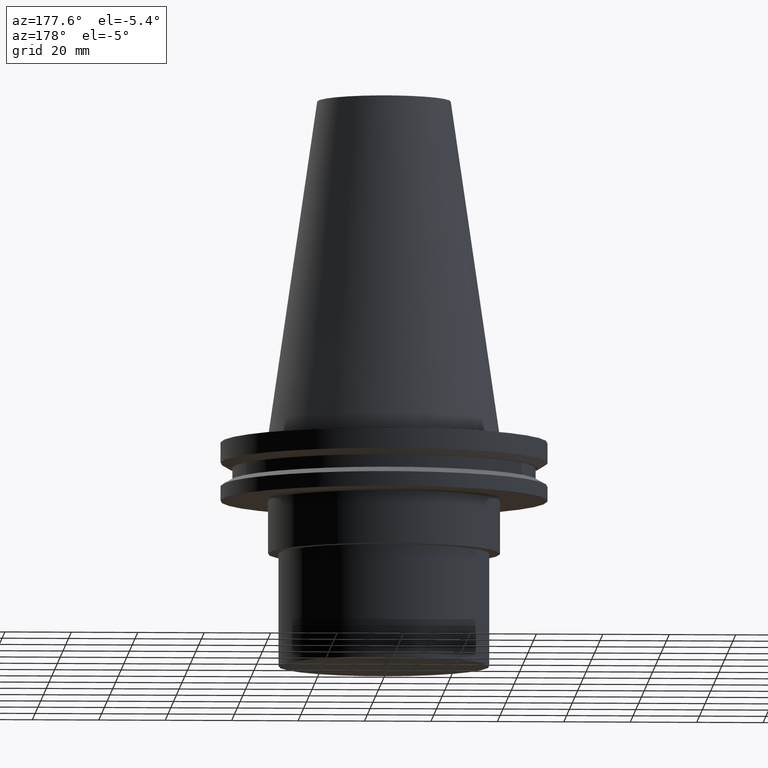
[diagram: clean part render]
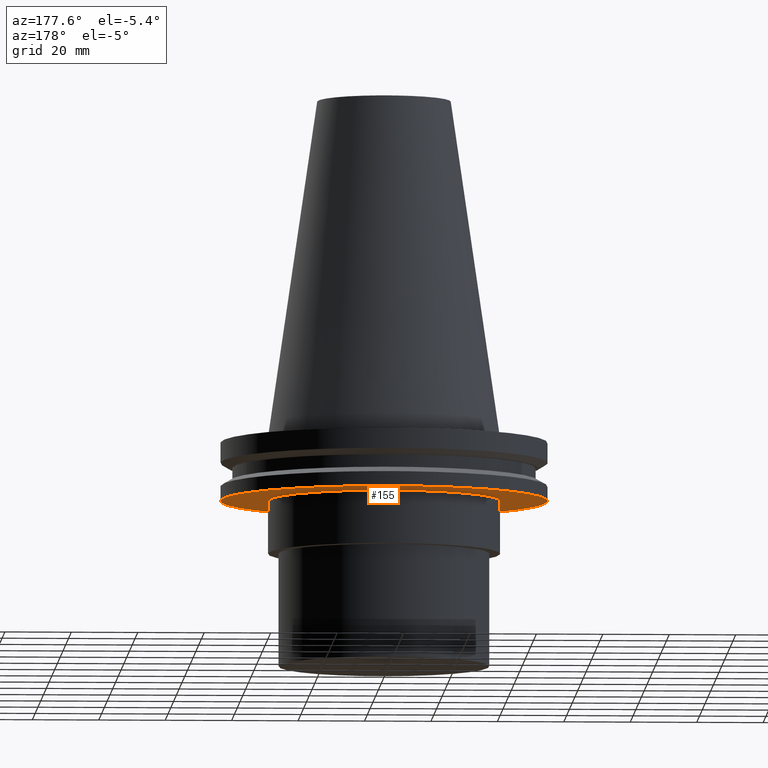
[diagram: same view with one face highlighted and labeled with its STEP entity id]
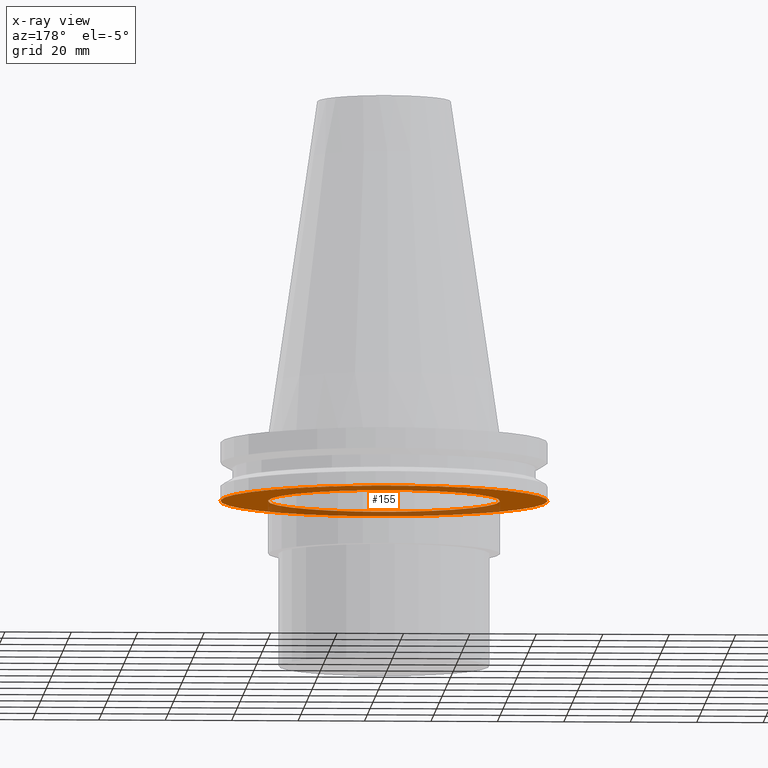
[diagram: x-ray of the same camera — body ghosted, the highlighted face saturated]
A machine part, auxiliary view. The second image highlights one B-rep face of the part: STEP entity #155.
The next image is the same camera in x-ray: the body ghosted, the highlighted face saturated — about 31% of this face is hidden behind the body in this view.
In plain terms, the highlighted planar face has unit normal (0, -0, 1).
Its self-contained STEP definition (entity closure, byte-faithful):
#2 = AXIS2_PLACEMENT_3D ( 'NONE', #6, #103, #231 ) ;
#6 = CARTESIAN_POINT ( 'NONE',  ( 0.000000000000000000, 0.000000000000000000, -19.04999999999999716 ) ) ;
#31 = DIRECTION ( 'NONE',  ( 0.000000000000000000, -0.000000000000000000, 1.000000000000000000 ) ) ;
#52 = CIRCLE ( 'NONE', #59, 49.21499999999998920 ) ;
#57 = PLANE ( 'NONE',  #375 ) ;
#58 = VERTEX_POINT ( 'NONE', #116 ) ;
#59 = AXIS2_PLACEMENT_3D ( 'NONE', #213, #332, #303 ) ;
#85 = FACE_OUTER_BOUND ( 'NONE', #99, .T. ) ;
#99 = EDGE_LOOP ( 'NONE', ( #190 ) ) ;
#103 = DIRECTION ( 'NONE',  ( -0.000000000000000000, -0.000000000000000000, 1.000000000000000000 ) ) ;
#116 = CARTESIAN_POINT ( 'NONE',  ( 34.92499999999999716, 0.000000000000000000, -19.04999999999999716 ) ) ;
#127 = EDGE_LOOP ( 'NONE', ( #163 ) ) ;
#155 = ADVANCED_FACE ( 'NONE', ( #85, #362 ), #57, .F. ) ;
#163 = ORIENTED_EDGE ( 'NONE', *, *, #320, .T. ) ;
#179 = CIRCLE ( 'NONE', #2, 34.92499999999999716 ) ;
#190 = ORIENTED_EDGE ( 'NONE', *, *, #377, .F. ) ;
#204 = CARTESIAN_POINT ( 'NONE',  ( 49.21499999999998920, 0.000000000000000000, -19.04999999999999716 ) ) ;
#213 = CARTESIAN_POINT ( 'NONE',  ( 0.000000000000000000, 0.000000000000000000, -19.04999999999999716 ) ) ;
#231 = DIRECTION ( 'NONE',  ( 1.000000000000000000, 0.000000000000000000, 0.000000000000000000 ) ) ;
#303 = DIRECTION ( 'NONE',  ( 1.000000000000000000, 0.000000000000000000, 0.000000000000000000 ) ) ;
#320 = EDGE_CURVE ( 'NONE', #58, #58, #179, .T. ) ;
#325 = CARTESIAN_POINT ( 'NONE',  ( 0.000000000000000000, 49.21499999999998920, -19.04999999999999716 ) ) ;
#332 = DIRECTION ( 'NONE',  ( -0.000000000000000000, -0.000000000000000000, 1.000000000000000000 ) ) ;
#339 = DIRECTION ( 'NONE',  ( 1.000000000000000000, 0.000000000000000000, 0.000000000000000000 ) ) ;
#361 = VERTEX_POINT ( 'NONE', #204 ) ;
#362 = FACE_BOUND ( 'NONE', #127, .T. ) ;
#375 = AXIS2_PLACEMENT_3D ( 'NONE', #325, #31, #339 ) ;
#377 = EDGE_CURVE ( 'NONE', #361, #361, #52, .T. ) ;